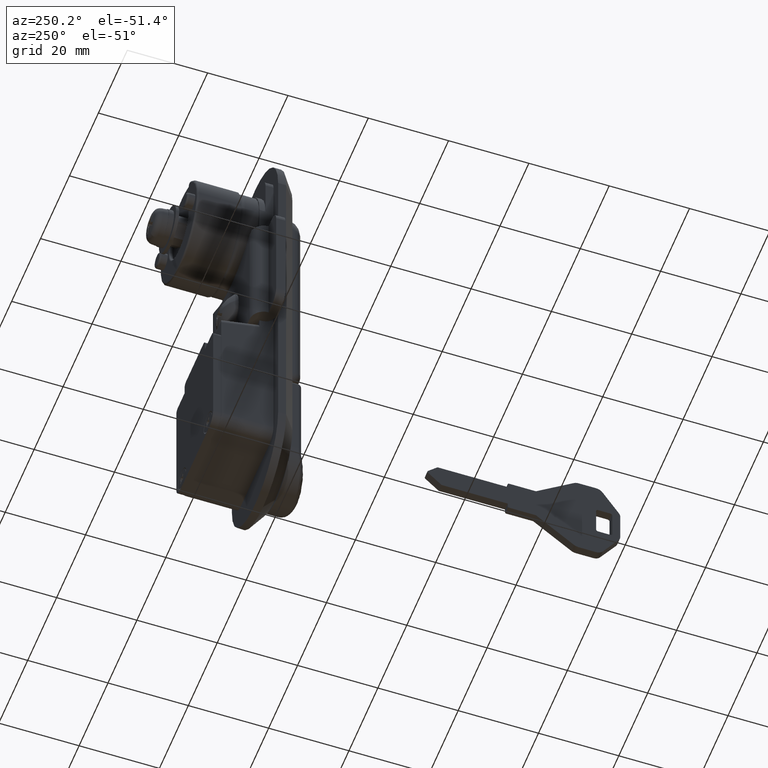
[diagram: clean part render]
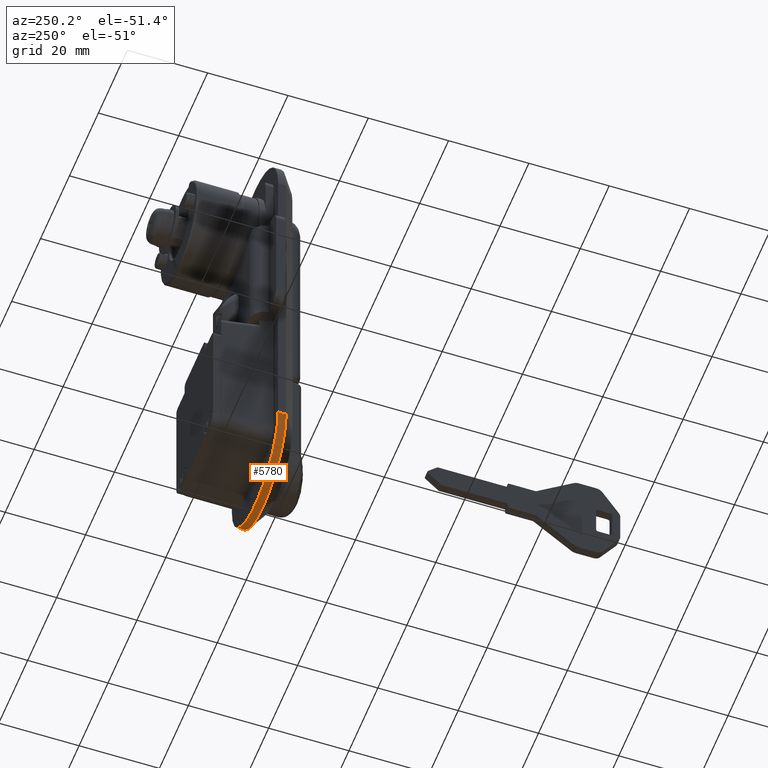
[diagram: same view with one face highlighted and labeled with its STEP entity id]
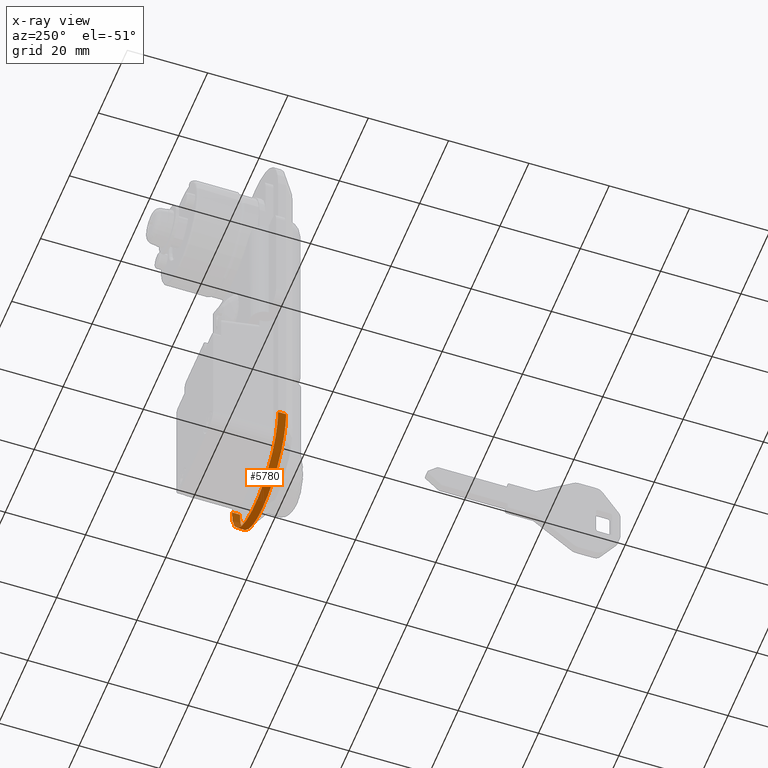
[diagram: x-ray of the same camera — body ghosted, the highlighted face saturated]
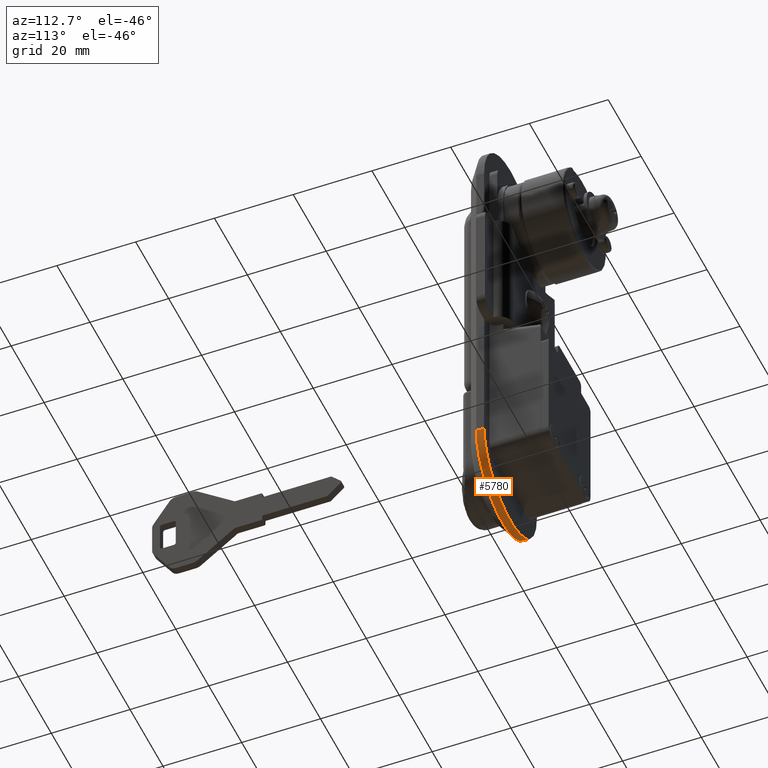
[diagram: same view with one face highlighted and labeled with its STEP entity id]
A machine part, auxiliary view. The second image highlights one B-rep face of the part: STEP entity #5780.
The next image is the same camera in x-ray: the body ghosted, the highlighted face saturated — about 0% of this face is hidden behind the body in this view.
A second angle (auxiliary view) of the same face is appended — the face is thin or edge-on in the first view.
In plain terms, the highlighted cylindrical surface (partial cylindrical patch) has radius 16 mm, axis along (0, -1, 0).
Its self-contained STEP definition (entity closure, byte-faithful):
#5094 = VERTEX_POINT ( 'NONE', #11815 ) ;
#5097 = EDGE_CURVE ( 'NONE', #5168, #5094, #11812, .T. ) ;
#5168 = VERTEX_POINT ( 'NONE', #11964 ) ;
#5369 = VERTEX_POINT ( 'NONE', #12291 ) ;
#5480 = EDGE_CURVE ( 'NONE', #5369, #5168, #12541, .T. ) ;
#5717 = ORIENTED_EDGE ( 'NONE', *, *, #5718, .T. ) ;
#5718 = EDGE_CURVE ( 'NONE', #5790, #5753, #13033, .T. ) ;
#5719 = ORIENTED_EDGE ( 'NONE', *, *, #5752, .T. ) ;
#5720 = ORIENTED_EDGE ( 'NONE', *, *, #5097, .F. ) ;
#5752 = EDGE_CURVE ( 'NONE', #5753, #5094, #13046, .T. ) ;
#5753 = VERTEX_POINT ( 'NONE', #13042 ) ;
#5780 = ADVANCED_FACE ( 'NONE', ( #13078 ), #13133, .T. ) ;
#5781 = EDGE_LOOP ( 'NONE', ( #5782, #5783, #5717, #5719, #5720 ) ) ;
#5782 = ORIENTED_EDGE ( 'NONE', *, *, #5480, .F. ) ;
#5783 = ORIENTED_EDGE ( 'NONE', *, *, #5792, .F. ) ;
#5790 = VERTEX_POINT ( 'NONE', #13120 ) ;
#5792 = EDGE_CURVE ( 'NONE', #5790, #5369, #13119, .T. ) ;
#11804 = DIRECTION ( 'NONE',  ( 0.0000000000000000000, 0.0000000000000000000, -1.000000000000000000 ) ) ;
#11805 = DIRECTION ( 'NONE',  ( -1.000000000000000000, 0.0000000000000000000, 0.0000000000000000000 ) ) ;
#11806 = CARTESIAN_POINT ( 'NONE',  ( 3.000000000000000000, -2.842170943040399500E-014, -78.20000000000000300 ) ) ;
#11807 = AXIS2_PLACEMENT_3D ( 'NONE', #11806, #11805, #11804 ) ;
#11812 = CIRCLE ( 'NONE', #11807, 16.00000000000000000 ) ;
#11815 = CARTESIAN_POINT ( 'NONE',  ( 3.000000000000000000, -16.00000000000000000, -78.20000000000000300 ) ) ;
#11964 = CARTESIAN_POINT ( 'NONE',  ( 3.000000000000000000, -2.842170943040399500E-014, -94.20000000000000300 ) ) ;
#12291 = CARTESIAN_POINT ( 'NONE',  ( 3.000000000000000000, 16.00000000000000000, -78.20000000000000300 ) ) ;
#12537 = DIRECTION ( 'NONE',  ( 0.0000000000000000000, 0.0000000000000000000, -1.000000000000000000 ) ) ;
#12538 = DIRECTION ( 'NONE',  ( -1.000000000000000000, 0.0000000000000000000, 0.0000000000000000000 ) ) ;
#12539 = CARTESIAN_POINT ( 'NONE',  ( 3.000000000000000000, -2.842170943040399500E-014, -78.20000000000000300 ) ) ;
#12540 = AXIS2_PLACEMENT_3D ( 'NONE', #12539, #12538, #12537 ) ;
#12541 = CIRCLE ( 'NONE', #12540, 16.00000000000000000 ) ;
#13029 = DIRECTION ( 'NONE',  ( 0.0000000000000000000, 0.0000000000000000000, 1.000000000000000000 ) ) ;
#13030 = DIRECTION ( 'NONE',  ( -1.000000000000000000, 0.0000000000000000000, 0.0000000000000000000 ) ) ;
#13031 = CARTESIAN_POINT ( 'NONE',  ( 5.000000000000000000, -2.842170943040399500E-014, -78.20000000000000300 ) ) ;
#13032 = AXIS2_PLACEMENT_3D ( 'NONE', #13031, #13030, #13029 ) ;
#13033 = CIRCLE ( 'NONE', #13032, 16.00000000000000000 ) ;
#13042 = CARTESIAN_POINT ( 'NONE',  ( 5.000000000000000000, -16.00000000000000000, -78.20000000000000300 ) ) ;
#13043 = DIRECTION ( 'NONE',  ( -1.000000000000000000, 0.0000000000000000000, 0.0000000000000000000 ) ) ;
#13044 = VECTOR ( 'NONE', #13043, 1000.000000000000000 ) ;
#13045 = CARTESIAN_POINT ( 'NONE',  ( 1002.999999999999900, -16.00000000000000000, -78.20000000000000300 ) ) ;
#13046 = LINE ( 'NONE', #13045, #13044 ) ;
#13078 = FACE_OUTER_BOUND ( 'NONE', #5781, .T. ) ;
#13116 = DIRECTION ( 'NONE',  ( -1.000000000000000000, 0.0000000000000000000, 0.0000000000000000000 ) ) ;
#13117 = VECTOR ( 'NONE', #13116, 1000.000000000000000 ) ;
#13118 = CARTESIAN_POINT ( 'NONE',  ( 1002.999999999999900, 16.00000000000000000, -78.20000000000000300 ) ) ;
#13119 = LINE ( 'NONE', #13118, #13117 ) ;
#13120 = CARTESIAN_POINT ( 'NONE',  ( 5.000000000000000000, 16.00000000000000000, -78.20000000000000300 ) ) ;
#13130 = DIRECTION ( 'NONE',  ( 0.0000000000000000000, 0.0000000000000000000, 1.000000000000000000 ) ) ;
#13131 = DIRECTION ( 'NONE',  ( -1.000000000000000000, 0.0000000000000000000, 0.0000000000000000000 ) ) ;
#13132 = AXIS2_PLACEMENT_3D ( 'NONE', #13135, #13131, #13130 ) ;
#13133 = CYLINDRICAL_SURFACE ( 'NONE', #13132, 16.00000000000000000 ) ;
#13135 = CARTESIAN_POINT ( 'NONE',  ( 1002.999999999999900, -2.842170943040399500E-014, -78.20000000000000300 ) ) ;